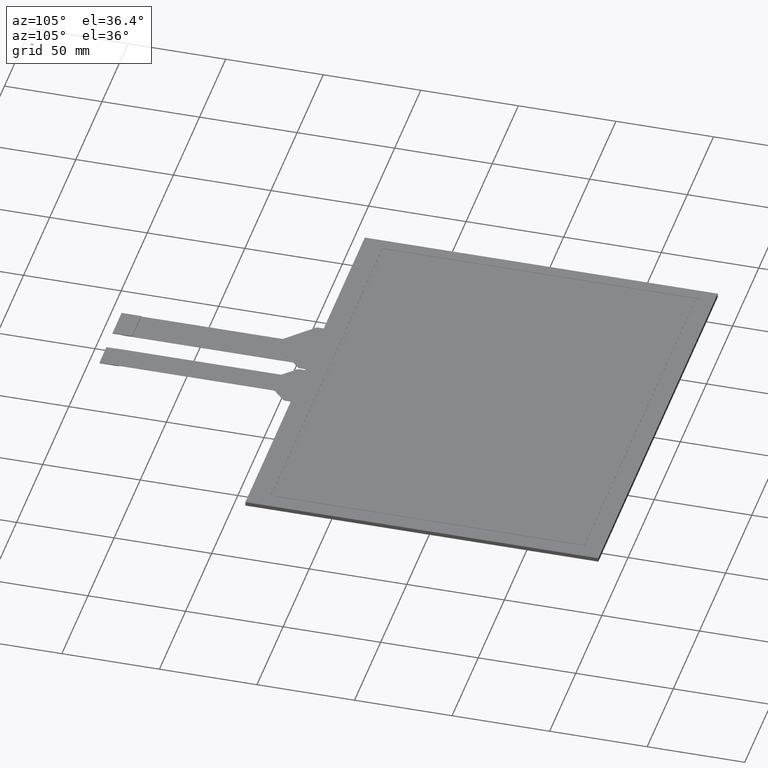
[diagram: clean part render]
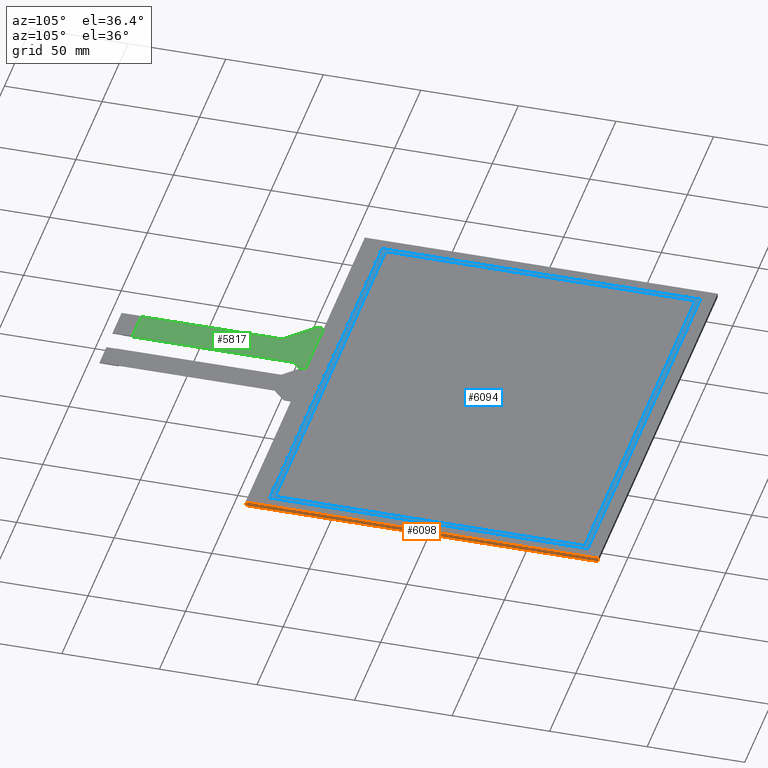
[diagram: same view with three faces highlighted in distinct colors, each labeled with its STEP entity id]
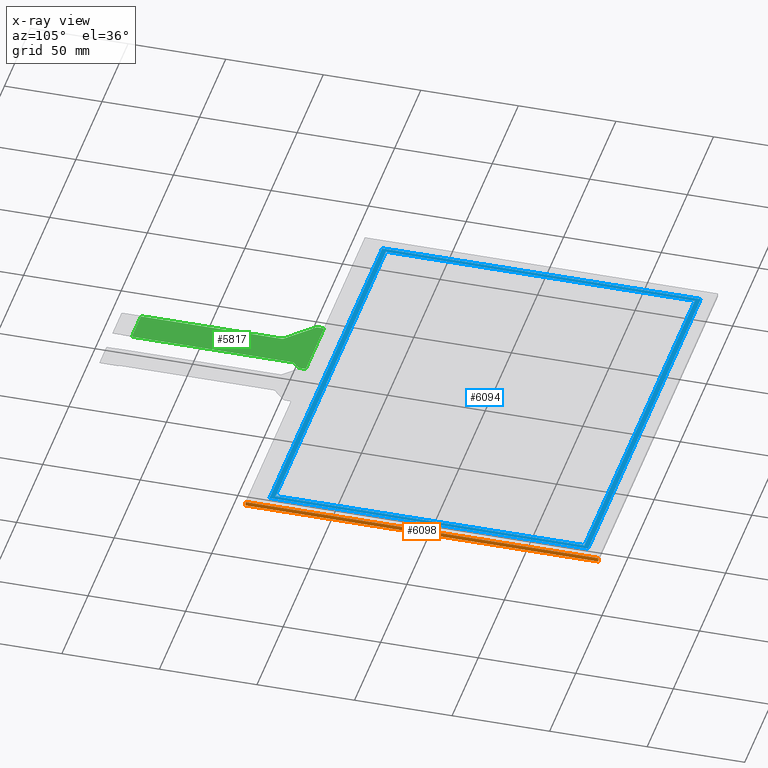
[diagram: x-ray of the same camera — body ghosted, the three highlighted faces saturated]
A machine part, auxiliary view with three faces highlighted in distinct colors.
The next image is the same camera in x-ray (body ghosted, the three faces saturated) — at least one of them is partly hidden behind the body in this view.
Their STEP definitions:

[orange] entity #6098 — the highlighted planar face has unit normal (1, 0, 0).
#328=PLANE('',#6436);
#622=FACE_OUTER_BOUND('',#920,.T.);
#920=EDGE_LOOP('',(#5780,#5781,#5782,#5783));
#1755=LINE('',#9634,#2595);
#1760=LINE('',#9644,#2600);
#1761=LINE('',#9647,#2601);
#1762=LINE('',#9648,#2602);
#2595=VECTOR('',#7897,10.);
#2600=VECTOR('',#7906,10.);
#2601=VECTOR('',#7909,10.);
#2602=VECTOR('',#7910,10.);
#3196=VERTEX_POINT('',#9627);
#3199=VERTEX_POINT('',#9632);
#3202=VERTEX_POINT('',#9642);
#3203=VERTEX_POINT('',#9646);
#4059=EDGE_CURVE('',#3199,#3196,#1755,.T.);
#4064=EDGE_CURVE('',#3199,#3202,#1760,.T.);
#4065=EDGE_CURVE('',#3203,#3202,#1761,.T.);
#4066=EDGE_CURVE('',#3196,#3203,#1762,.T.);
#5780=ORIENTED_EDGE('',*,*,#4059,.F.);
#5781=ORIENTED_EDGE('',*,*,#4064,.T.);
#5782=ORIENTED_EDGE('',*,*,#4065,.F.);
#5783=ORIENTED_EDGE('',*,*,#4066,.F.);
#6098=ADVANCED_FACE('',(#622),#328,.T.);
#6436=AXIS2_PLACEMENT_3D('',#9645,#7907,#7908);
#7897=DIRECTION('',(-9.81955135102405E-17,1.,0.));
#7906=DIRECTION('',(0.,0.,-1.));
#7907=DIRECTION('center_axis',(1.,9.81955135102405E-17,0.));
#7908=DIRECTION('ref_axis',(9.81955135102405E-17,-1.,0.));
#7909=DIRECTION('',(9.81955135102405E-17,-1.,0.));
#7910=DIRECTION('',(0.,0.,-1.));
#9627=CARTESIAN_POINT('',(114.25,88.6000000000001,0.));
#9632=CARTESIAN_POINT('',(114.25,-92.2999999999999,0.));
#9634=CARTESIAN_POINT('',(114.25,-92.2999999999999,0.));
#9642=CARTESIAN_POINT('',(114.25,-92.2999999999999,-2.1));
#9644=CARTESIAN_POINT('',(114.25,-92.2999999999999,0.));
#9645=CARTESIAN_POINT('Origin',(114.25,88.6000000000001,0.));
#9646=CARTESIAN_POINT('',(114.25,88.6000000000001,-2.1));
#9647=CARTESIAN_POINT('',(114.25,-92.2999999999999,-2.1));
#9648=CARTESIAN_POINT('',(114.25,88.6000000000001,0.));

[blue] entity #6094 — the highlighted planar face has unit normal (0, 0, -1).
#46=FACE_BOUND('',#913,.T.);
#324=PLANE('',#6432);
#618=FACE_OUTER_BOUND('',#912,.T.);
#912=EDGE_LOOP('',(#5748,#5749,#5750,#5751));
#913=EDGE_LOOP('',(#5752,#5753,#5754,#5755));
#1730=LINE('',#9584,#2570);
#1734=LINE('',#9591,#2574);
#1737=LINE('',#9597,#2577);
#1739=LINE('',#9600,#2579);
#1742=LINE('',#9608,#2582);
#1746=LINE('',#9615,#2586);
#1749=LINE('',#9621,#2589);
#1751=LINE('',#9624,#2591);
#2570=VECTOR('',#7854,10.);
#2574=VECTOR('',#7860,10.);
#2577=VECTOR('',#7865,10.);
#2579=VECTOR('',#7869,10.);
#2582=VECTOR('',#7874,10.);
#2586=VECTOR('',#7880,10.);
#2589=VECTOR('',#7885,10.);
#2591=VECTOR('',#7889,10.);
#3182=VERTEX_POINT('',#9581);
#3183=VERTEX_POINT('',#9583);
#3185=VERTEX_POINT('',#9589);
#3187=VERTEX_POINT('',#9595);
#3190=VERTEX_POINT('',#9605);
#3191=VERTEX_POINT('',#9607);
#3193=VERTEX_POINT('',#9613);
#3195=VERTEX_POINT('',#9619);
#4034=EDGE_CURVE('',#3182,#3183,#1730,.T.);
#4038=EDGE_CURVE('',#3185,#3182,#1734,.T.);
#4041=EDGE_CURVE('',#3187,#3185,#1737,.T.);
#4043=EDGE_CURVE('',#3183,#3187,#1739,.T.);
#4046=EDGE_CURVE('',#3190,#3191,#1742,.T.);
#4050=EDGE_CURVE('',#3193,#3190,#1746,.T.);
#4053=EDGE_CURVE('',#3195,#3193,#1749,.T.);
#4055=EDGE_CURVE('',#3191,#3195,#1751,.T.);
#5748=ORIENTED_EDGE('',*,*,#4055,.F.);
#5749=ORIENTED_EDGE('',*,*,#4046,.F.);
#5750=ORIENTED_EDGE('',*,*,#4050,.F.);
#5751=ORIENTED_EDGE('',*,*,#4053,.F.);
#5752=ORIENTED_EDGE('',*,*,#4043,.F.);
#5753=ORIENTED_EDGE('',*,*,#4034,.F.);
#5754=ORIENTED_EDGE('',*,*,#4038,.F.);
#5755=ORIENTED_EDGE('',*,*,#4041,.F.);
#6094=ADVANCED_FACE('',(#618,#46),#324,.F.);
#6432=AXIS2_PLACEMENT_3D('',#9625,#7890,#7891);
#7854=DIRECTION('',(1.,1.26161707343768E-16,0.));
#7860=DIRECTION('',(3.36431219583381E-16,-1.,0.));
#7865=DIRECTION('',(-1.,-6.30808536718839E-16,0.));
#7869=DIRECTION('',(-4.48574959444508E-16,1.,0.));
#7874=DIRECTION('',(-2.17690789142188E-16,1.,0.));
#7880=DIRECTION('',(-1.,-8.24295517123086E-17,0.));
#7885=DIRECTION('',(1.08845394571094E-16,-1.,0.));
#7889=DIRECTION('',(1.,0.,0.));
#7890=DIRECTION('center_axis',(0.,0.,-1.));
#7891=DIRECTION('ref_axis',(-1.,0.,0.));
#9581=CARTESIAN_POINT('',(-105.6,-79.2,-0.1));
#9583=CARTESIAN_POINT('',(105.6,-79.1999999999999,-0.1));
#9584=CARTESIAN_POINT('',(105.6,-79.1999999999999,-0.1));
#9589=CARTESIAN_POINT('',(-105.6,79.2,-0.1));
#9591=CARTESIAN_POINT('',(-105.6,-79.2,-0.1));
#9595=CARTESIAN_POINT('',(105.6,79.2000000000001,-0.1));
#9597=CARTESIAN_POINT('',(-105.6,79.2,-0.1));
#9600=CARTESIAN_POINT('',(105.6,79.2000000000001,-0.1));
#9605=CARTESIAN_POINT('',(-107.75,-81.6,-0.1));
#9607=CARTESIAN_POINT('',(-107.75,81.6000000000001,-0.1));
#9608=CARTESIAN_POINT('',(-107.75,81.6,-0.1));
#9613=CARTESIAN_POINT('',(107.75,-81.6,-0.1));
#9615=CARTESIAN_POINT('',(-107.75,-81.6,-0.1));
#9619=CARTESIAN_POINT('',(107.75,81.6000000000001,-0.1));
#9621=CARTESIAN_POINT('',(107.75,-81.6,-0.1));
#9624=CARTESIAN_POINT('',(107.75,81.6000000000001,-0.1));
#9625=CARTESIAN_POINT('Origin',(5.32907051820075E-14,5.32907051820075E-14,
-0.1));

[green] entity #5817 — the highlighted planar face has unit normal (0, 0, 1).
#55=PLANE('',#6141);
#341=FACE_OUTER_BOUND('',#635,.T.);
#635=EDGE_LOOP('',(#4120,#4121,#4122,#4123,#4124,#4125,#4126,#4127,#4128,
#4129,#4130,#4131));
#945=LINE('',#7981,#1785);
#955=LINE('',#8004,#1795);
#956=LINE('',#8007,#1796);
#957=LINE('',#8009,#1797);
#958=LINE('',#8011,#1798);
#959=LINE('',#8015,#1799);
#960=LINE('',#8019,#1800);
#961=LINE('',#8020,#1801);
#1785=VECTOR('',#6493,10.);
#1795=VECTOR('',#6511,10.);
#1796=VECTOR('',#6514,10.);
#1797=VECTOR('',#6515,10.);
#1798=VECTOR('',#6516,10.);
#1799=VECTOR('',#6519,10.);
#1800=VECTOR('',#6522,10.);
#1801=VECTOR('',#6523,10.);
#2610=CIRCLE('',#6134,1.);
#2613=CIRCLE('',#6139,1.);
#2614=CIRCLE('',#6142,1.);
#2615=CIRCLE('',#6143,1.);
#2649=VERTEX_POINT('',#7971);
#2650=VERTEX_POINT('',#7972);
#2653=VERTEX_POINT('',#7980);
#2661=VERTEX_POINT('',#7997);
#2662=VERTEX_POINT('',#7999);
#2663=VERTEX_POINT('',#8006);
#2664=VERTEX_POINT('',#8008);
#2665=VERTEX_POINT('',#8010);
#2666=VERTEX_POINT('',#8012);
#2667=VERTEX_POINT('',#8014);
#2668=VERTEX_POINT('',#8016);
#2669=VERTEX_POINT('',#8018);
#3229=EDGE_CURVE('',#2649,#2650,#2610,.T.);
#3233=EDGE_CURVE('',#2653,#2650,#945,.T.);
#3242=EDGE_CURVE('',#2661,#2662,#2613,.T.);
#3245=EDGE_CURVE('',#2649,#2662,#955,.T.);
#3246=EDGE_CURVE('',#2661,#2663,#956,.T.);
#3247=EDGE_CURVE('',#2664,#2663,#957,.T.);
#3248=EDGE_CURVE('',#2664,#2665,#958,.T.);
#3249=EDGE_CURVE('',#2666,#2665,#2614,.T.);
#3250=EDGE_CURVE('',#2666,#2667,#959,.T.);
#3251=EDGE_CURVE('',#2668,#2667,#2615,.T.);
#3252=EDGE_CURVE('',#2668,#2669,#960,.T.);
#3253=EDGE_CURVE('',#2669,#2653,#961,.T.);
#4120=ORIENTED_EDGE('',*,*,#3242,.F.);
#4121=ORIENTED_EDGE('',*,*,#3246,.T.);
#4122=ORIENTED_EDGE('',*,*,#3247,.F.);
#4123=ORIENTED_EDGE('',*,*,#3248,.T.);
#4124=ORIENTED_EDGE('',*,*,#3249,.F.);
#4125=ORIENTED_EDGE('',*,*,#3250,.T.);
#4126=ORIENTED_EDGE('',*,*,#3251,.F.);
#4127=ORIENTED_EDGE('',*,*,#3252,.T.);
#4128=ORIENTED_EDGE('',*,*,#3253,.T.);
#4129=ORIENTED_EDGE('',*,*,#3233,.T.);
#4130=ORIENTED_EDGE('',*,*,#3229,.F.);
#4131=ORIENTED_EDGE('',*,*,#3245,.T.);
#5817=ADVANCED_FACE('',(#341),#55,.T.);
#6134=AXIS2_PLACEMENT_3D('',#7973,#6485,#6486);
#6139=AXIS2_PLACEMENT_3D('',#8000,#6505,#6506);
#6141=AXIS2_PLACEMENT_3D('',#8005,#6512,#6513);
#6142=AXIS2_PLACEMENT_3D('',#8013,#6517,#6518);
#6143=AXIS2_PLACEMENT_3D('',#8017,#6520,#6521);
#6485=DIRECTION('center_axis',(0.,0.,1.));
#6486=DIRECTION('ref_axis',(-0.923531889914345,0.383521639951696,0.));
#6493=DIRECTION('',(-5.27173776538863E-16,1.,0.));
#6505=DIRECTION('center_axis',(0.,0.,-1.));
#6506=DIRECTION('ref_axis',(0.923531889914345,-0.383521639951696,0.));
#6511=DIRECTION('',(0.708388929935268,0.705822303377533,0.));
#6512=DIRECTION('center_axis',(0.,0.,1.));
#6513=DIRECTION('ref_axis',(1.,0.,0.));
#6514=DIRECTION('',(-2.31296463463575E-16,1.,0.));
#6515=DIRECTION('',(1.,1.55479810888425E-16,0.));
#6516=DIRECTION('',(0.,-1.,0.));
#6517=DIRECTION('center_axis',(0.,0.,-1.));
#6518=DIRECTION('ref_axis',(-0.924226414342084,-0.381844909658848,0.));
#6519=DIRECTION('',(0.705822303377533,-0.708388929935268,0.));
#6520=DIRECTION('center_axis',(0.,0.,1.));
#6521=DIRECTION('ref_axis',(0.924226414342084,0.38184490965885,0.));
#6522=DIRECTION('',(1.07527653716722E-16,-1.,0.));
#6523=DIRECTION('',(1.,0.,0.));
#7971=CARTESIAN_POINT('',(-4.45582230337749,-99.3433012080754,-0.2));
#7972=CARTESIAN_POINT('',(-4.74999999999996,-100.051690138011,-0.2));
#7973=CARTESIAN_POINT('Origin',(-3.74999999999996,-100.051690138011,-0.2));
#7980=CARTESIAN_POINT('',(-4.74999999999991,-182.3,-0.2));
#7981=CARTESIAN_POINT('',(-4.74999999999991,-192.3,-0.2));
#7997=CARTESIAN_POINT('',(-0.999999999999948,-95.4847229054675,-0.2));
#7999=CARTESIAN_POINT('',(-1.29417769662241,-96.1931118354027,-0.2));
#8000=CARTESIAN_POINT('Origin',(-1.99999999999995,-95.4847229054675,-0.2));
#8004=CARTESIAN_POINT('',(-4.74999999999996,-99.6364130434782,-0.2));
#8005=CARTESIAN_POINT('Origin',(-18.4999999999999,-142.3,-0.2));
#8006=CARTESIAN_POINT('',(-0.999999999999949,-92.2999999999999,-0.2));
#8007=CARTESIAN_POINT('',(-0.999999999999948,-95.8999999999999,-0.2));
#8008=CARTESIAN_POINT('',(-36.,-92.3,-0.2));
#8009=CARTESIAN_POINT('',(47.8750000000001,-92.2999999999999,-0.2));
#8010=CARTESIAN_POINT('',(-36.,-95.4868491705783,-0.2));
#8011=CARTESIAN_POINT('',(-36.,-92.3,-0.2));
#8012=CARTESIAN_POINT('',(-35.7083889299352,-96.1926714739558,-0.2));
#8013=CARTESIAN_POINT('Origin',(-34.9999999999999,-95.4868491705783,-0.2));
#8014=CARTESIAN_POINT('',(-22.5416110700646,-109.407328526044,-0.2));
#8015=CARTESIAN_POINT('',(-36.,-95.8999999999999,-0.2));
#8016=CARTESIAN_POINT('',(-22.2499999999999,-110.113150829422,-0.2));
#8017=CARTESIAN_POINT('Origin',(-23.2499999999999,-110.113150829422,-0.2));
#8018=CARTESIAN_POINT('',(-22.2499999999999,-182.3,-0.2));
#8019=CARTESIAN_POINT('',(-22.2499999999999,-109.7,-0.2));
#8020=CARTESIAN_POINT('',(-11.6249999999999,-182.3,-0.2));